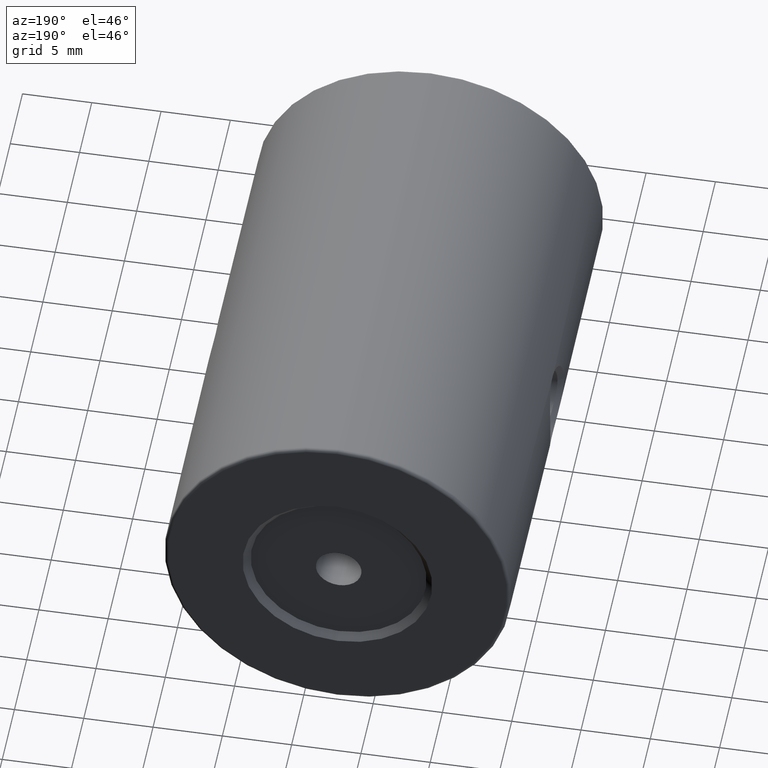
[diagram: clean part render]
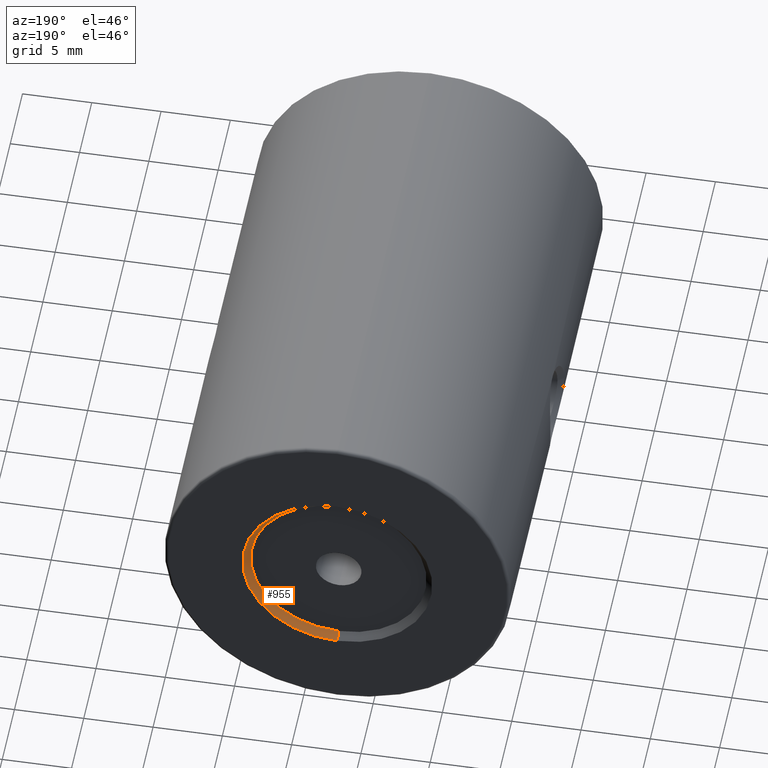
[diagram: same view with one face highlighted and labeled with its STEP entity id]
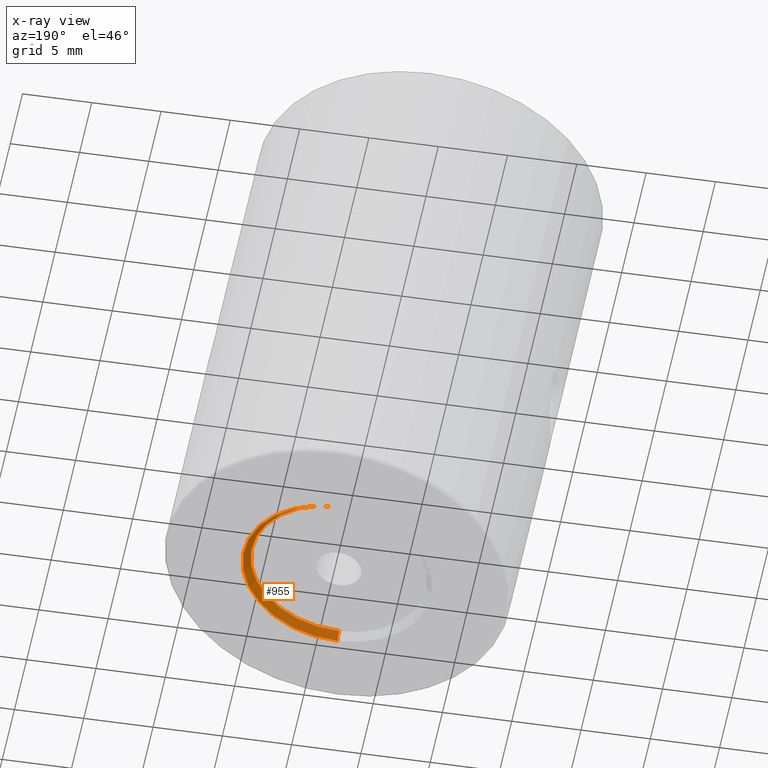
[diagram: x-ray of the same camera — body ghosted, the highlighted face saturated]
A machine part, auxiliary view. The second image highlights one B-rep face of the part: STEP entity #955.
The next image is the same camera in x-ray: the body ghosted, the highlighted face saturated — about 0% of this face is hidden behind the body in this view.
In plain terms, the highlighted conical surface has half-angle 45 deg.
Its self-contained STEP definition (entity closure, byte-faithful):
#6 = CIRCLE ( 'NONE', #120, 6.350000000000001421 ) ;
#37 = DIRECTION ( 'NONE',  ( 0.0000000000000000000, 1.000000000000000000, 0.0000000000000000000 ) ) ;
#54 = CARTESIAN_POINT ( 'NONE',  ( -22.50520183104453409, 19.94825218476938744, 50.00000000000000000 ) ) ;
#120 = AXIS2_PLACEMENT_3D ( 'NONE', #848, #1967, #3039 ) ;
#292 = LINE ( 'NONE', #3436, #1779 ) ;
#570 = DIRECTION ( 'NONE',  ( 0.0000000000000000000, 0.0000000000000000000, 1.000000000000000000 ) ) ;
#572 = CARTESIAN_POINT ( 'NONE',  ( -22.50520183104453409, 19.94825218476938744, 56.35000000000000142 ) ) ;
#848 = CARTESIAN_POINT ( 'NONE',  ( -22.50520183104453409, 19.94825218476939099, 50.00000000000000000 ) ) ;
#856 = AXIS2_PLACEMENT_3D ( 'NONE', #54, #37, #2383 ) ;
#901 = ORIENTED_EDGE ( 'NONE', *, *, #2899, .F. ) ;
#902 = VECTOR ( 'NONE', #2124, 1000.000000000000114 ) ;
#955 = ADVANCED_FACE ( 'NONE', ( #1118 ), #1018, .F. ) ;
#1018 = CONICAL_SURFACE ( 'NONE', #856, 6.350000000000001421, 0.7853981633974528309 ) ;
#1118 = FACE_OUTER_BOUND ( 'NONE', #2035, .T. ) ;
#1334 = ORIENTED_EDGE ( 'NONE', *, *, #2561, .T. ) ;
#1352 = DIRECTION ( 'NONE',  ( 8.659560562354969836E-17, 0.7071067811865443531, -0.7071067811865506814 ) ) ;
#1406 = DIRECTION ( 'NONE',  ( -0.0000000000000000000, -1.000000000000000000, -0.0000000000000000000 ) ) ;
#1504 = AXIS2_PLACEMENT_3D ( 'NONE', #3300, #1406, #570 ) ;
#1577 = CARTESIAN_POINT ( 'NONE',  ( -22.50520183104453409, 20.44825218476939099, 43.14999999999999147 ) ) ;
#1772 = VERTEX_POINT ( 'NONE', #2516 ) ;
#1779 = VECTOR ( 'NONE', #1352, 1000.000000000000114 ) ;
#1850 = EDGE_CURVE ( 'NONE', #2808, #1772, #2065, .T. ) ;
#1912 = EDGE_CURVE ( 'NONE', #3015, #2671, #6, .T. ) ;
#1967 = DIRECTION ( 'NONE',  ( 0.0000000000000000000, 1.000000000000000000, 0.0000000000000000000 ) ) ;
#2035 = EDGE_LOOP ( 'NONE', ( #901, #3053, #1334, #2937 ) ) ;
#2065 = CIRCLE ( 'NONE', #1504, 6.850000000000008527 ) ;
#2124 = DIRECTION ( 'NONE',  ( 0.0000000000000000000, 0.7071067811865443531, 0.7071067811865506814 ) ) ;
#2157 = LINE ( 'NONE', #572, #902 ) ;
#2383 = DIRECTION ( 'NONE',  ( 0.0000000000000000000, 0.0000000000000000000, 1.000000000000000000 ) ) ;
#2445 = CARTESIAN_POINT ( 'NONE',  ( -22.50520183104453409, 19.94825218476939099, 56.35000000000000142 ) ) ;
#2516 = CARTESIAN_POINT ( 'NONE',  ( -22.50520183104453409, 20.44825218476939099, 56.85000000000000853 ) ) ;
#2561 = EDGE_CURVE ( 'NONE', #3015, #1772, #2157, .T. ) ;
#2671 = VERTEX_POINT ( 'NONE', #2708 ) ;
#2708 = CARTESIAN_POINT ( 'NONE',  ( -22.50520183104453409, 19.94825218476939099, 43.64999999999999858 ) ) ;
#2808 = VERTEX_POINT ( 'NONE', #1577 ) ;
#2899 = EDGE_CURVE ( 'NONE', #2671, #2808, #292, .T. ) ;
#2937 = ORIENTED_EDGE ( 'NONE', *, *, #1850, .F. ) ;
#3015 = VERTEX_POINT ( 'NONE', #2445 ) ;
#3039 = DIRECTION ( 'NONE',  ( 0.0000000000000000000, 0.0000000000000000000, 1.000000000000000000 ) ) ;
#3053 = ORIENTED_EDGE ( 'NONE', *, *, #1912, .F. ) ;
#3300 = CARTESIAN_POINT ( 'NONE',  ( -22.50520183104453409, 20.44825218476939099, 50.00000000000000000 ) ) ;
#3436 = CARTESIAN_POINT ( 'NONE',  ( -22.50520183104453409, 19.94825218476938744, 43.64999999999999858 ) ) ;